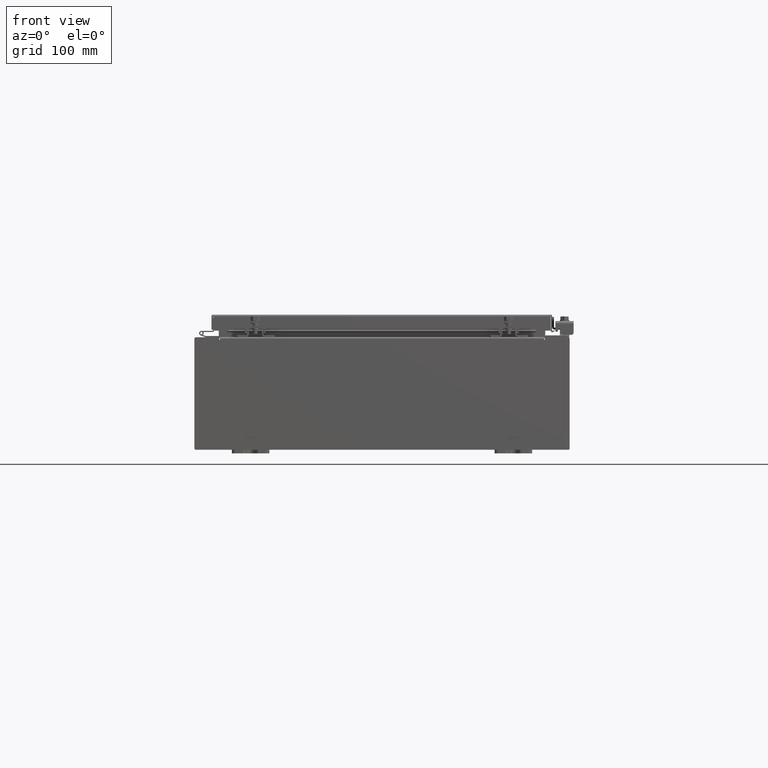
[diagram: clean part render]
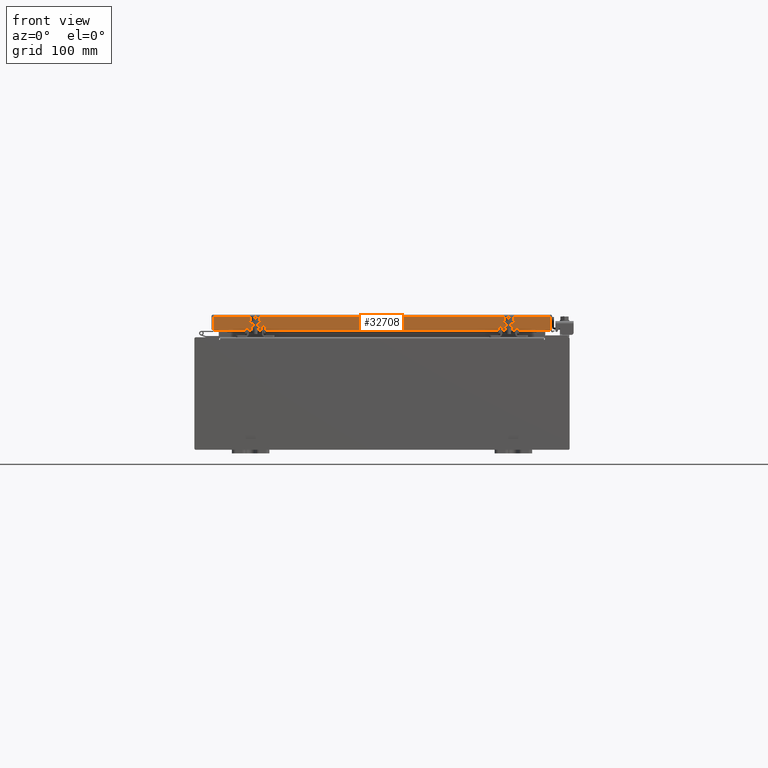
[diagram: same view with one face highlighted and labeled with its STEP entity id]
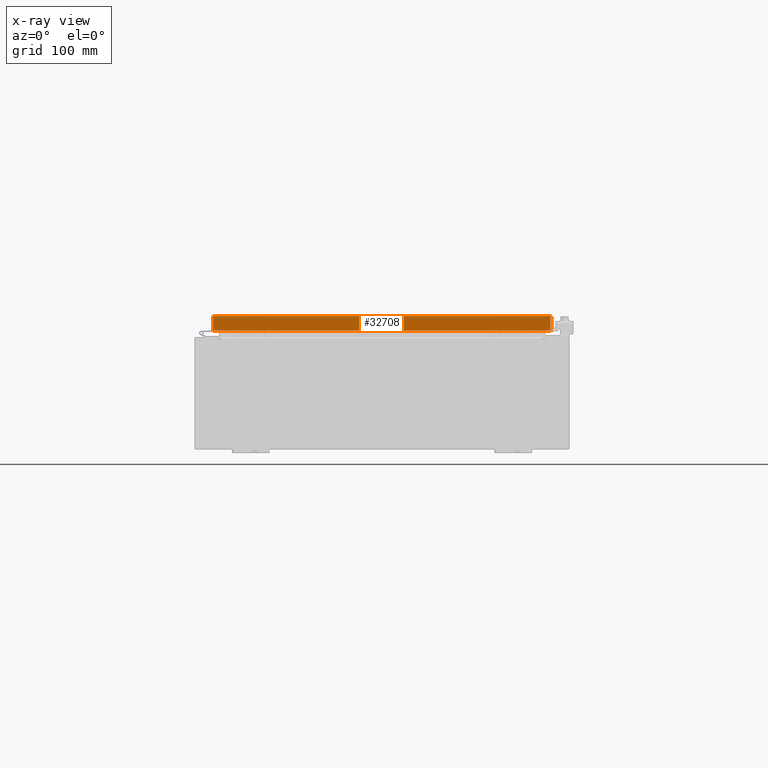
[diagram: x-ray of the same camera — body ghosted, the highlighted face saturated]
A machine part, front view. The second image highlights one B-rep face of the part: STEP entity #32708.
The next image is the same camera in x-ray: the body ghosted, the highlighted face saturated — about 0% of this face is hidden behind the body in this view.
In plain terms, the highlighted planar face has unit normal (0, 1, -0).
Its self-contained STEP definition (entity closure, byte-faithful):
#814 = CARTESIAN_POINT ( 'NONE',  ( 8.239157864376270600, -14.09399999999999900, -0.8500000000000006400 ) ) ;
#1145 = CARTESIAN_POINT ( 'NONE',  ( -8.989157864376265300, -14.09399999999999900, -0.08770000000000007000 ) ) ;
#1743 = EDGE_CURVE ( 'NONE', #30592, #35379, #3016, .T. ) ;
#2544 = AXIS2_PLACEMENT_3D ( 'NONE', #37142, #14000, #22690 ) ;
#2649 = EDGE_CURVE ( 'NONE', #8804, #7196, #18298, .T. ) ;
#2855 = VERTEX_POINT ( 'NONE', #36333 ) ;
#2973 = ORIENTED_EDGE ( 'NONE', *, *, #4073, .F. ) ;
#3016 = LINE ( 'NONE', #35339, #7091 ) ;
#3369 = LINE ( 'NONE', #3493, #10135 ) ;
#3493 = CARTESIAN_POINT ( 'NONE',  ( 9.078000000000001200, -14.09400000000000100, -0.08770000000000007000 ) ) ;
#3920 = VECTOR ( 'NONE', #36505, 39.37007874015748100 ) ;
#3924 = DIRECTION ( 'NONE',  ( 0.0000000000000000000, -2.818880942772360100E-015, -1.000000000000000000 ) ) ;
#4073 = EDGE_CURVE ( 'NONE', #35379, #2855, #10523, .T. ) ;
#4137 = FACE_OUTER_BOUND ( 'NONE', #12763, .T. ) ;
#4147 = CARTESIAN_POINT ( 'NONE',  ( -8.989157864376265300, -14.09399999999999900, 3.999012166344521600E-014 ) ) ;
#4641 = CARTESIAN_POINT ( 'NONE',  ( 9.078000000000001200, -14.09400000000000300, -0.8499999999999996400 ) ) ;
#4742 = VECTOR ( 'NONE', #7575, 39.37007874015748100 ) ;
#7091 = VECTOR ( 'NONE', #36519, 39.37007874015748100 ) ;
#7196 = VERTEX_POINT ( 'NONE', #12447 ) ;
#7218 = CARTESIAN_POINT ( 'NONE',  ( 8.239157864376270600, -14.09399999999999900, -0.8500000000000006400 ) ) ;
#7575 = DIRECTION ( 'NONE',  ( -1.000000000000000000, 1.203722403024570700E-016, 1.203722403024571000E-016 ) ) ;
#8804 = VERTEX_POINT ( 'NONE', #1145 ) ;
#10135 = VECTOR ( 'NONE', #26622, 39.37007874015748100 ) ;
#10465 = CARTESIAN_POINT ( 'NONE',  ( 8.989157864376270600, -14.09400000000000300, -0.8499999999999996400 ) ) ;
#10523 = LINE ( 'NONE', #814, #24997 ) ;
#10626 = VECTOR ( 'NONE', #3924, 39.37007874015748100 ) ;
#11439 = ORIENTED_EDGE ( 'NONE', *, *, #2649, .T. ) ;
#12447 = CARTESIAN_POINT ( 'NONE',  ( -8.989157864376265300, -14.09400000000000100, -0.8499999999999975400 ) ) ;
#12763 = EDGE_LOOP ( 'NONE', ( #16295, #11439, #16381, #2973, #17099, #37089 ) ) ;
#14000 = DIRECTION ( 'NONE',  ( 1.203722403024567300E-016, 1.000000000000000000, -2.818880942772360100E-015 ) ) ;
#14280 = EDGE_CURVE ( 'NONE', #32311, #30592, #14354, .T. ) ;
#14354 = LINE ( 'NONE', #24833, #3920 ) ;
#14796 = CARTESIAN_POINT ( 'NONE',  ( 8.989157864376256400, -14.09400000000000100, -0.08770000000000007000 ) ) ;
#15712 = EDGE_CURVE ( 'NONE', #2855, #7196, #35515, .T. ) ;
#16004 = EDGE_CURVE ( 'NONE', #8804, #32311, #3369, .T. ) ;
#16295 = ORIENTED_EDGE ( 'NONE', *, *, #16004, .F. ) ;
#16381 = ORIENTED_EDGE ( 'NONE', *, *, #15712, .F. ) ;
#17099 = ORIENTED_EDGE ( 'NONE', *, *, #1743, .F. ) ;
#18298 = LINE ( 'NONE', #4147, #10626 ) ;
#22690 = DIRECTION ( 'NONE',  ( 0.0000000000000000000, 2.818880942772360100E-015, 1.000000000000000000 ) ) ;
#24833 = CARTESIAN_POINT ( 'NONE',  ( 8.989157864376270600, -14.09400000000000100, -0.07469999999999978000 ) ) ;
#24997 = VECTOR ( 'NONE', #35452, 39.37007874015748100 ) ;
#26622 = DIRECTION ( 'NONE',  ( 1.000000000000000000, -1.203722403024567300E-016, -9.633926942233120500E-046 ) ) ;
#30592 = VERTEX_POINT ( 'NONE', #10465 ) ;
#32311 = VERTEX_POINT ( 'NONE', #14796 ) ;
#32708 = ADVANCED_FACE ( 'NONE', ( #4137 ), #34252, .F. ) ;
#34252 = PLANE ( 'NONE',  #2544 ) ;
#35339 = CARTESIAN_POINT ( 'NONE',  ( 9.078000000000001200, -14.09400000000000300, -0.8499999999999996400 ) ) ;
#35379 = VERTEX_POINT ( 'NONE', #7218 ) ;
#35452 = DIRECTION ( 'NONE',  ( -1.000000000000000000, 0.0000000000000000000, 0.0000000000000000000 ) ) ;
#35515 = LINE ( 'NONE', #4641, #4742 ) ;
#36333 = CARTESIAN_POINT ( 'NONE',  ( -8.239157864376267100, -14.09399999999999900, -0.8500000000000006400 ) ) ;
#36505 = DIRECTION ( 'NONE',  ( 0.0000000000000000000, -2.818880942772360100E-015, -1.000000000000000000 ) ) ;
#36519 = DIRECTION ( 'NONE',  ( -1.000000000000000000, 1.203722403024570700E-016, 1.203722403024571000E-016 ) ) ;
#37089 = ORIENTED_EDGE ( 'NONE', *, *, #14280, .F. ) ;
#37142 = CARTESIAN_POINT ( 'NONE',  ( -1.696526354822824800E-015, -14.09399999999999900, 3.999012166344521600E-014 ) ) ;